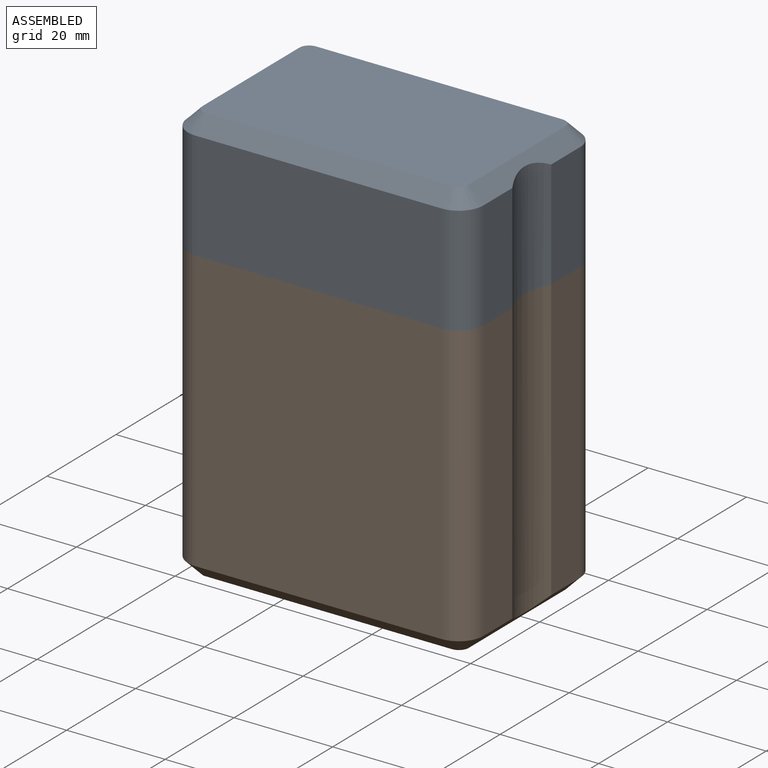
[diagram: assembled view]
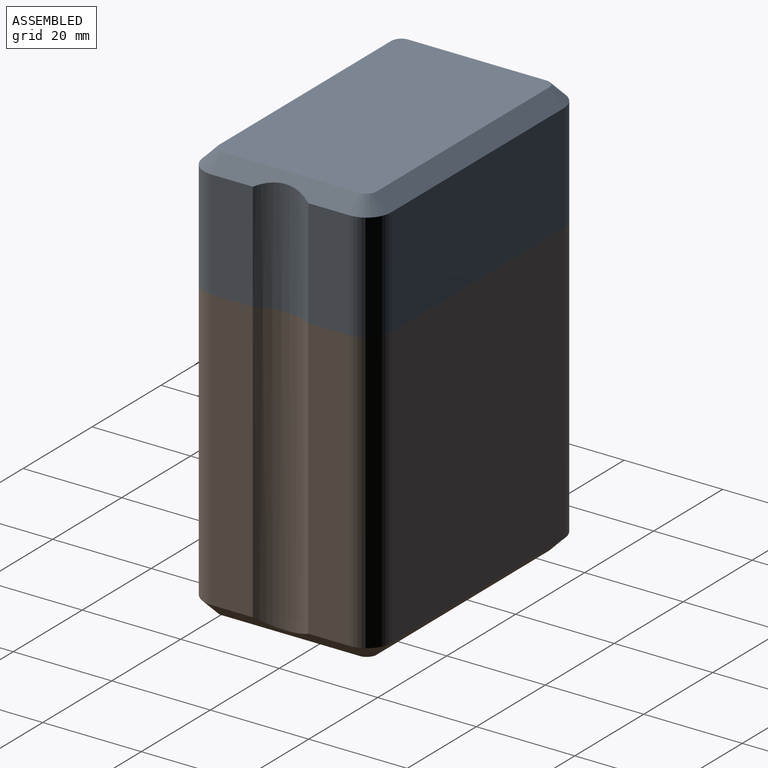
[diagram: assembled view, second angle]
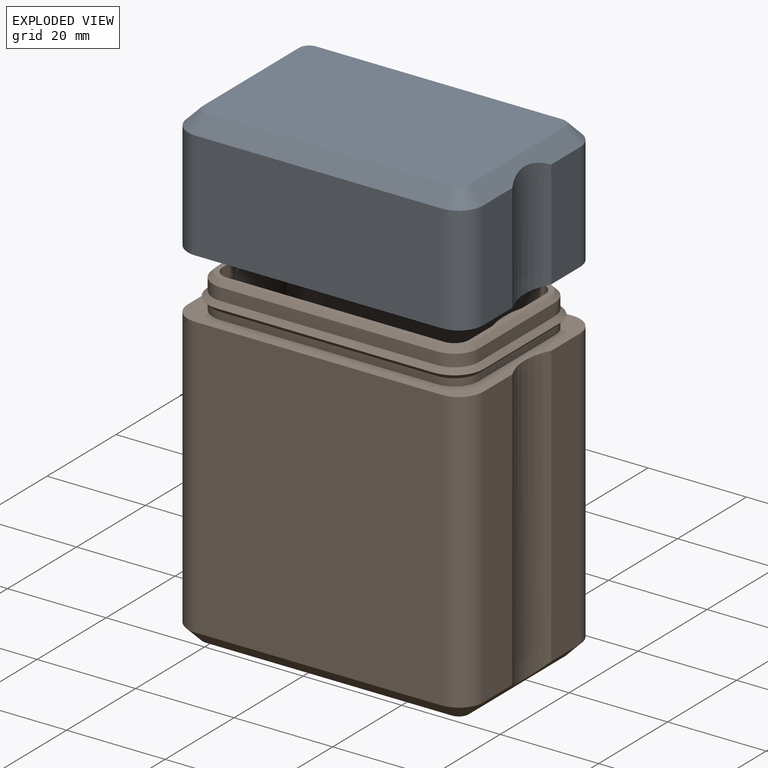
[diagram: exploded view]
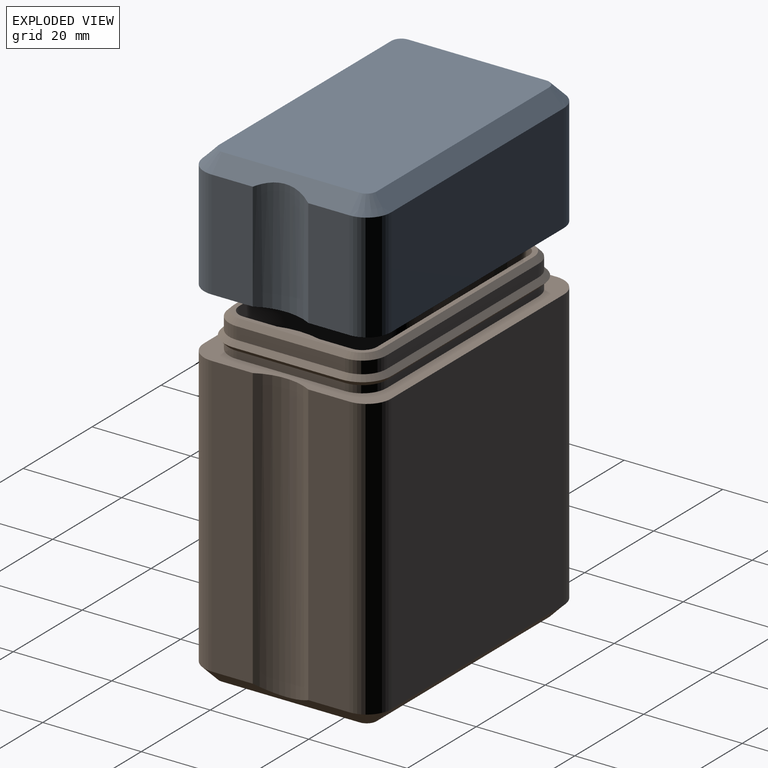
[diagram: exploded view, second angle]
ASSEMBLY  parts=2 mates=3
PART A: 90 faces, bbox 60x38x25 mm
  f0: plane 22x8.37mm, normal (-1,0,0), area 184.2mm2, adj f2,f11,f60,f68
  f1: plane 22x8.37mm, normal (1,0,0), area 184.2mm2, adj f2,f12,f59,f69
  f2: plane 60x38mm, normal (0,0,1), area 363.4mm2, adj f0,f1,f6,f7,f8,f9,f11,f12
  f3: plane 14x6.71mm, normal (-1,0,0), area 52mm2, adj f43,f48,f65,f66,f77
  f4: plane 46x24mm, normal (0,0,1), area 1065.7mm2, adj f70,f71,f72,f73,f74,f75,f76,f77
  f5: plane 14x6.71mm, normal (1,0,0), area 52mm2, adj f43,f49,f64,f67,f70
  f6: plane 22x8.37mm, normal (-1,0,0), area 184.2mm2, adj f2,f14,f60,f68
  f7: plane 50x22mm, normal (0,-1,0), area 1100mm2, adj f2,f11,f12,f56
  f8: plane 22x8.37mm, normal (1,0,0), area 184.2mm2, adj f2,f13,f59,f69
  f9: plane 50x22mm, normal (0,1,0), area 1100mm2, adj f2,f13,f14,f63
  f10: plane 54x32mm, normal (0,0,-1), area 1724.6mm2, adj f56,f57,f58,f59,f60,f61,f62,f63
  f11: cylinder r=5mm len=22mm, axis (0,0,-1), area 172.8mm2, adj f0,f2,f7,f58
  f12: cylinder r=5mm len=22mm, axis (0,0,1), area 172.8mm2, adj f1,f2,f7,f57
  f13: cylinder r=5mm len=22mm, axis (0,0,-1), area 172.8mm2, adj f2,f8,f9,f61
  f14: cylinder r=5mm len=22mm, axis (0,0,1), area 172.8mm2, adj f2,f6,f9,f62
  f15: cylinder r=5mm len=5mm, axis (0,0,1), area 27.5mm2, adj f16,f19,f43,f44
  f16: cone r=6mm half-angle=45deg, axis (0,0,1), area 12.2mm2, adj f15,f17,f20,f45
  f17: cone r=5mm half-angle=45deg, axis (0,0,-1), area 12.2mm2, adj f16,f18,f21,f46
  f18: cylinder r=5mm len=5mm, axis (0,0,1), area 3.9mm2, adj f17,f22,f47,f83
  f19: plane 44x3.5mm, normal (0,-1,0), area 154mm2, adj f15,f20,f23,f43
  f20: plane 44x1mm, normal (0,-0.71,0.71), area 62.2mm2, adj f16,f19,f21,f24
  f21: plane 44x1mm, normal (0,-0.71,-0.71), area 62.2mm2, adj f17,f20,f22,f25
  f22: plane 44x0.5mm, normal (0,-1,0), area 22mm2, adj f18,f21,f26,f82
  f23: cylinder r=5mm len=5mm, axis (0,0,1), area 27.5mm2, adj f19,f24,f27,f43
  f24: cone r=6mm half-angle=45deg, axis (0,0,1), area 12.2mm2, adj f20,f23,f25,f28
  f25: cone r=5mm half-angle=45deg, axis (0,0,-1), area 12.2mm2, adj f21,f24,f26,f29
  f26: cylinder r=5mm len=5mm, axis (0,0,1), area 3.9mm2, adj f22,f25,f30,f84
  f27: plane 22x3.5mm, normal (-1,0,0), area 77mm2, adj f23,f28,f31,f43
  f28: plane 22x1mm, normal (-0.71,0,0.71), area 31.1mm2, adj f24,f27,f29,f32
  f29: plane 22x1mm, normal (-0.71,0,-0.71), area 31.1mm2, adj f25,f28,f30,f33
  f30: plane 22x0.5mm, normal (-1,0,0), area 11mm2, adj f26,f29,f34,f86
  f31: cylinder r=5mm len=5mm, axis (0,0,1), area 27.5mm2, adj f27,f32,f35,f43
  f32: cone r=6mm half-angle=45deg, axis (0,0,1), area 12.2mm2, adj f28,f31,f33,f36
  f33: cone r=5mm half-angle=45deg, axis (0,0,-1), area 12.2mm2, adj f29,f32,f34,f37
  f34: cylinder r=5mm len=5mm, axis (0,0,1), area 3.9mm2, adj f30,f33,f38,f88
  f35: plane 44x3.5mm, normal (0,1,0), area 154mm2, adj f31,f36,f39,f43
  f36: plane 44x1mm, normal (0,0.71,0.71), area 62.2mm2, adj f32,f35,f37,f40
  f37: plane 44x1mm, normal (0,0.71,-0.71), area 62.2mm2, adj f33,f36,f38,f41
  f38: plane 44x0.5mm, normal (0,1,0), area 22mm2, adj f34,f37,f42,f89
  f39: cylinder r=5mm len=5mm, axis (0,0,1), area 27.5mm2, adj f35,f40,f43,f44
  f40: cone r=6mm half-angle=45deg, axis (0,0,1), area 12.2mm2, adj f36,f39,f41,f45
  f41: cone r=5mm half-angle=45deg, axis (0,0,-1), area 12.2mm2, adj f37,f40,f42,f46
  f42: cylinder r=5mm len=5mm, axis (0,0,1), area 3.9mm2, adj f38,f41,f47,f87
  f43: plane 54x32mm, normal (0,0,1), area 321.1mm2, adj f3,f5,f15,f19,f23,f27,f31,f35
  f44: plane 22x3.5mm, normal (1,0,0), area 77mm2, adj f15,f39,f43,f45
  f45: plane 22x1mm, normal (0.71,0,0.71), area 31.1mm2, adj f16,f40,f44,f46
  f46: plane 22x1mm, normal (0.71,0,-0.71), area 31.1mm2, adj f17,f41,f45,f47
  f47: plane 22x0.5mm, normal (1,0,0), area 11mm2, adj f18,f42,f46,f85
  f48: cylinder r=3mm len=14mm, axis (0,0,-1), area 66mm2, adj f3,f43,f50,f75
  f49: cylinder r=3mm len=14mm, axis (0,0,1), area 66mm2, adj f5,f43,f50,f71
  f50: plane 44x14mm, normal (0,1,0), area 616mm2, adj f43,f48,f49,f73
  f51: cylinder r=3mm len=14mm, axis (0,0,1), area 66mm2, adj f43,f52,f54,f80
  f52: plane 14x6.71mm, normal (-1,0,0), area 52mm2, adj f43,f51,f65,f66,f81
  f53: cylinder r=3mm len=14mm, axis (0,0,-1), area 66mm2, adj f43,f54,f55,f76
  f54: plane 44x14mm, normal (0,-1,0), area 616mm2, adj f43,f51,f53,f78
  f55: plane 14x6.71mm, normal (1,0,0), area 52mm2, adj f43,f53,f64,f67,f74
  f56: plane 50x3mm, normal (0,-0.71,-0.71), area 212.1mm2, adj f7,f10,f57,f58
  f57: cone r=2mm half-angle=45deg, axis (0,0,1), area 23.3mm2, adj f10,f12,f56,f59
  f58: cone r=2mm half-angle=45deg, axis (0,0,1), area 23.3mm2, adj f10,f11,f56,f60
  f59: plane 28x3mm, normal (0.71,0,-0.71), area 103.2mm2, adj f1,f8,f10,f57,f61,f69
  f60: plane 28x3mm, normal (-0.71,0,-0.71), area 103.2mm2, adj f0,f6,f10,f58,f62,f68
  f61: cone r=2mm half-angle=45deg, axis (0,0,1), area 23.3mm2, adj f10,f13,f59,f63
  f62: cone r=2mm half-angle=45deg, axis (0,0,1), area 23.3mm2, adj f10,f14,f60,f63
  f63: plane 50x3mm, normal (0,0.71,-0.71), area 212.1mm2, adj f9,f10,f61,f62
  f64: cylinder r=16.95mm len=15mm, axis (0,0,-1), area 186.5mm2, adj f5,f55,f67,f72
  f65: cylinder r=16.95mm len=15mm, axis (0,0,-1), area 186.5mm2, adj f3,f52,f66,f79
  f66: cone r=15.79mm half-angle=30deg, axis (0,0,-1), area 28.5mm2, adj f3,f43,f52,f65
  f67: cone r=16.95mm half-angle=30deg, axis (0,0,-1), area 28.5mm2, adj f5,f43,f55,f64
  f68: cylinder r=11.65mm len=23.45mm, axis (0,0,-1), area 269.7mm2, adj f0,f2,f6,f60
  f69: cylinder r=11.65mm len=23.45mm, axis (0,0,-1), area 269.7mm2, adj f1,f2,f8,f59
  f70: cylinder r=2mm len=3.5mm, axis (0,1,0), area 10.5mm2, adj f4,f5,f71,f72
  f71: torus R=1mm, axis (0,0,1), area 11.2mm2, adj f4,f49,f70,f73
  f72: torus R=18.95mm, axis (0,0,1), area 49.8mm2, adj f4,f64,f70,f74
  f73: cylinder r=2mm len=44mm, axis (-1,0,0), area 138.2mm2, adj f4,f50,f71,f75
  f74: cylinder r=2mm len=3.5mm, axis (0,1,0), area 10.5mm2, adj f4,f55,f72,f76
  f75: torus R=1mm, axis (0,0,1), area 11.2mm2, adj f4,f48,f73,f77
  f76: torus R=1mm, axis (0,0,1), area 11.2mm2, adj f4,f53,f74,f78
  f77: cylinder r=2mm len=3.5mm, axis (0,-1,0), area 10.5mm2, adj f3,f4,f75,f79
  f78: cylinder r=2mm len=44mm, axis (1,0,0), area 138.2mm2, adj f4,f54,f76,f80
  f79: torus R=18.95mm, axis (0,0,1), area 49.8mm2, adj f4,f65,f77,f81
  f80: torus R=1mm, axis (0,0,1), area 11.2mm2, adj f4,f51,f78,f81
  f81: cylinder r=2mm len=3.5mm, axis (0,-1,0), area 10.5mm2, adj f4,f52,f79,f80
  f82: plane 44x1mm, normal (0,-0.71,0.71), area 62.2mm2, adj f2,f22,f83,f84
  f83: cone r=5mm half-angle=45deg, axis (0,0,1), area 12.2mm2, adj f2,f18,f82,f85
  f84: cone r=5mm half-angle=45deg, axis (0,0,1), area 12.2mm2, adj f2,f26,f82,f86
  f85: plane 22x1mm, normal (0.71,0,0.71), area 31.1mm2, adj f2,f47,f83,f87
  f86: plane 22x1mm, normal (-0.71,0,0.71), area 31.1mm2, adj f2,f30,f84,f88
  f87: cone r=5mm half-angle=45deg, axis (0,0,1), area 12.2mm2, adj f2,f42,f85,f89
  f88: cone r=5mm half-angle=45deg, axis (0,0,1), area 12.2mm2, adj f2,f34,f86,f89
  f89: plane 44x1mm, normal (0,0.71,0.71), area 62.2mm2, adj f2,f38,f87,f88
PART B: 90 faces, bbox 60x38x67 mm
  f0: plane 57x8.37mm, normal (-1,0,0), area 477.2mm2, adj f2,f52,f60,f67
  f1: plane 57x8.37mm, normal (1,0,0), area 477.2mm2, adj f2,f53,f59,f68
  f2: plane 60x38mm, normal (0,0,1), area 530mm2, adj f0,f1,f6,f7,f8,f9,f11,f15
  f3: plane 63x6.71mm, normal (-1,0,0), area 223.5mm2, adj f40,f44,f65,f66,f72
  f4: plane 46x24mm, normal (0,0,1), area 1065.7mm2, adj f69,f70,f71,f72,f73,f74,f75,f76
  f5: plane 63x6.71mm, normal (1,0,0), area 223.5mm2, adj f40,f50,f64,f80,f81
  f6: plane 57x8.37mm, normal (-1,0,0), area 477.2mm2, adj f2,f55,f60,f67
  f7: plane 57x50mm, normal (0,-1,0), area 2850mm2, adj f2,f52,f53,f56
  f8: plane 57x8.37mm, normal (1,0,0), area 477.2mm2, adj f2,f54,f59,f68
  f9: plane 57x50mm, normal (0,1,0), area 2850mm2, adj f2,f54,f55,f63
  f10: plane 54x32mm, normal (0,0,-1), area 1724.6mm2, adj f56,f57,f58,f59,f60,f61,f62,f63
  f11: cylinder r=5mm len=5mm, axis (0,0,-1), area 11.8mm2, adj f2,f14,f15,f39
  f12: cylinder r=5mm len=5mm, axis (0,0,-1), area 19.6mm2, adj f13,f16,f41,f89
  f13: cone r=6mm half-angle=45deg, axis (0,0,-1), area 12.2mm2, adj f12,f14,f17,f42
  f14: cone r=5mm half-angle=45deg, axis (0,0,1), area 12.2mm2, adj f11,f13,f18,f43
  f15: plane 44x1.5mm, normal (0,1,0), area 66mm2, adj f2,f11,f18,f19
  f16: plane 44x2.5mm, normal (0,1,0), area 110mm2, adj f12,f17,f20,f87
  f17: plane 44x1mm, normal (0,0.71,0.71), area 62.2mm2, adj f13,f16,f18,f21
  f18: plane 44x1mm, normal (0,0.71,-0.71), area 62.2mm2, adj f14,f15,f17,f22
  f19: cylinder r=5mm len=5mm, axis (0,0,-1), area 11.8mm2, adj f2,f15,f22,f23
  f20: cylinder r=5mm len=5mm, axis (0,0,-1), area 19.6mm2, adj f16,f21,f24,f85
  f21: cone r=6mm half-angle=45deg, axis (0,0,-1), area 12.2mm2, adj f17,f20,f22,f25
  f22: cone r=5mm half-angle=45deg, axis (0,0,1), area 12.2mm2, adj f18,f19,f21,f26
  f23: plane 22x1.5mm, normal (-1,0,0), area 33mm2, adj f2,f19,f26,f27
  f24: plane 22x2.5mm, normal (-1,0,0), area 55mm2, adj f20,f25,f28,f83
  f25: plane 22x1mm, normal (-0.71,0,0.71), area 31.1mm2, adj f21,f24,f26,f29
  f26: plane 22x1mm, normal (-0.71,0,-0.71), area 31.1mm2, adj f22,f23,f25,f30
  f27: cylinder r=5mm len=5mm, axis (0,0,-1), area 11.8mm2, adj f2,f23,f30,f31
  f28: cylinder r=5mm len=5mm, axis (0,0,-1), area 19.6mm2, adj f24,f29,f32,f82
  f29: cone r=6mm half-angle=45deg, axis (0,0,-1), area 12.2mm2, adj f25,f28,f30,f33
  f30: cone r=5mm half-angle=45deg, axis (0,0,1), area 12.2mm2, adj f26,f27,f29,f34
  f31: plane 44x1.5mm, normal (0,-1,0), area 66mm2, adj f2,f27,f34,f35
  f32: plane 44x2.5mm, normal (0,-1,0), area 110mm2, adj f28,f33,f36,f84
  f33: plane 44x1mm, normal (0,-0.71,0.71), area 62.2mm2, adj f29,f32,f34,f37
  f34: plane 44x1mm, normal (0,-0.71,-0.71), area 62.2mm2, adj f30,f31,f33,f38
  f35: cylinder r=5mm len=5mm, axis (0,0,-1), area 11.8mm2, adj f2,f31,f38,f39
  f36: cylinder r=5mm len=5mm, axis (0,0,-1), area 19.6mm2, adj f32,f37,f41,f86
  f37: cone r=6mm half-angle=45deg, axis (0,0,-1), area 12.2mm2, adj f33,f36,f38,f42
  f38: cone r=5mm half-angle=45deg, axis (0,0,1), area 12.2mm2, adj f34,f35,f37,f43
  f39: plane 22x1.5mm, normal (1,0,0), area 33mm2, adj f2,f11,f35,f43
  f40: plane 52x30mm, normal (0,0,1), area 160.8mm2, adj f3,f5,f44,f45,f46,f47,f48,f49
  f41: plane 22x2.5mm, normal (1,0,0), area 55mm2, adj f12,f36,f42,f88
  f42: plane 22x1mm, normal (0.71,0,0.71), area 31.1mm2, adj f13,f37,f41,f43
  f43: plane 22x1mm, normal (0.71,0,-0.71), area 31.1mm2, adj f14,f38,f39,f42
  f44: cylinder r=3mm len=63mm, axis (0,0,-1), area 296.9mm2, adj f3,f40,f51,f74
  f45: plane 63x6.71mm, normal (-1,0,0), area 223.5mm2, adj f40,f46,f65,f66,f69
  f46: cylinder r=3mm len=63mm, axis (0,0,1), area 296.9mm2, adj f40,f45,f47,f71
  f47: plane 63x44mm, normal (0,-1,0), area 2772mm2, adj f40,f46,f48,f73
  f48: cylinder r=3mm len=63mm, axis (0,0,-1), area 296.9mm2, adj f40,f47,f49,f75
  f49: plane 63x6.71mm, normal (1,0,0), area 223.5mm2, adj f40,f48,f64,f77,f81
  f50: cylinder r=3mm len=63mm, axis (0,0,1), area 296.9mm2, adj f5,f40,f51,f78
  f51: plane 63x44mm, normal (0,1,0), area 2772mm2, adj f40,f44,f50,f76
  f52: cylinder r=5mm len=57mm, axis (0,0,-1), area 447.7mm2, adj f0,f2,f7,f58
  f53: cylinder r=5mm len=57mm, axis (0,0,1), area 447.7mm2, adj f1,f2,f7,f57
  f54: cylinder r=5mm len=57mm, axis (0,0,-1), area 447.7mm2, adj f2,f8,f9,f61
  f55: cylinder r=5mm len=57mm, axis (0,0,1), area 447.7mm2, adj f2,f6,f9,f62
  f56: plane 50x3mm, normal (0,-0.71,-0.71), area 212.1mm2, adj f7,f10,f57,f58
  f57: cone r=2mm half-angle=45deg, axis (0,0,1), area 23.3mm2, adj f10,f53,f56,f59
  f58: cone r=2mm half-angle=45deg, axis (0,0,1), area 23.3mm2, adj f10,f52,f56,f60
  f59: plane 28x3mm, normal (0.71,0,-0.71), area 103.2mm2, adj f1,f8,f10,f57,f61,f68
  f60: plane 28x3mm, normal (-0.71,0,-0.71), area 103.2mm2, adj f0,f6,f10,f58,f62,f67
  f61: cone r=2mm half-angle=45deg, axis (0,0,1), area 23.3mm2, adj f10,f54,f59,f63
  f62: cone r=2mm half-angle=45deg, axis (0,0,1), area 23.3mm2, adj f10,f55,f60,f63
  f63: plane 50x3mm, normal (0,0.71,-0.71), area 212.1mm2, adj f9,f10,f61,f62
  f64: cylinder r=16.95mm len=61mm, axis (0,0,-1), area 947.9mm2, adj f5,f49,f79,f81
  f65: cylinder r=16.95mm len=61mm, axis (0,0,-1), area 947.9mm2, adj f3,f45,f66,f70
  f66: cone r=16.95mm half-angle=30deg, axis (0,0,-1), area 28.5mm2, adj f3,f40,f45,f65
  f67: cylinder r=11.65mm len=58.45mm, axis (0,0,-1), area 680.9mm2, adj f0,f2,f6,f60
  f68: cylinder r=11.65mm len=58.45mm, axis (0,0,-1), area 680.9mm2, adj f1,f2,f8,f59
  f69: cylinder r=2mm len=3.5mm, axis (0,-1,0), area 10.5mm2, adj f4,f45,f70,f71
  f70: torus R=18.95mm, axis (0,0,1), area 49.8mm2, adj f4,f65,f69,f72
  f71: torus R=1mm, axis (0,0,1), area 11.2mm2, adj f4,f46,f69,f73
  f72: cylinder r=2mm len=3.5mm, axis (0,-1,0), area 10.5mm2, adj f3,f4,f70,f74
  f73: cylinder r=2mm len=44mm, axis (1,0,0), area 138.2mm2, adj f4,f47,f71,f75
  f74: torus R=1mm, axis (0,0,1), area 11.2mm2, adj f4,f44,f72,f76
  f75: torus R=1mm, axis (0,0,1), area 11.2mm2, adj f4,f48,f73,f77
  f76: cylinder r=2mm len=44mm, axis (-1,0,0), area 138.2mm2, adj f4,f51,f74,f78
  f77: cylinder r=2mm len=3.5mm, axis (0,1,0), area 10.5mm2, adj f4,f49,f75,f79
  f78: torus R=1mm, axis (0,0,1), area 11.2mm2, adj f4,f50,f76,f80
  f79: torus R=18.95mm, axis (0,0,1), area 49.8mm2, adj f4,f64,f77,f80
  f80: cylinder r=2mm len=3.5mm, axis (0,1,0), area 10.5mm2, adj f4,f5,f78,f79
  f81: cone r=15.79mm half-angle=30deg, axis (0,0,-1), area 28.5mm2, adj f5,f40,f49,f64
  f82: cone r=5mm half-angle=45deg, axis (0,0,-1), area 10mm2, adj f28,f40,f83,f84
  f83: plane 22x1mm, normal (-0.71,0,0.71), area 31.1mm2, adj f24,f40,f82,f85
  f84: plane 44x1mm, normal (0,-0.71,0.71), area 62.2mm2, adj f32,f40,f82,f86
  f85: cone r=5mm half-angle=45deg, axis (0,0,-1), area 10mm2, adj f20,f40,f83,f87
  f86: cone r=5mm half-angle=45deg, axis (0,0,-1), area 10mm2, adj f36,f40,f84,f88
  f87: plane 44x1mm, normal (0,0.71,0.71), area 62.2mm2, adj f16,f40,f85,f89
  f88: plane 22x1mm, normal (0.71,0,0.71), area 31.1mm2, adj f40,f41,f86,f89
  f89: cone r=5mm half-angle=45deg, axis (0,0,-1), area 10mm2, adj f12,f40,f87,f88
PLACE A rot(axis=(1,0,0),180deg) t=(27.61,32.6,124.84)mm
PLACE B rot(axis=(1,0,0),0deg) t=(27.61,32.6,39.84)mm
MATE planar B.f2 <-> A.f2  axis (0,0,1) through (27.61,32.6,99.84)mm
MATE planar A.f8 <-> B.f1  axis (1,0,0) through (57.61,22.79,110.84)mm
MATE planar B.f7 <-> A.f9  axis (0,-1,0) through (27.61,13.6,99.84)mm
